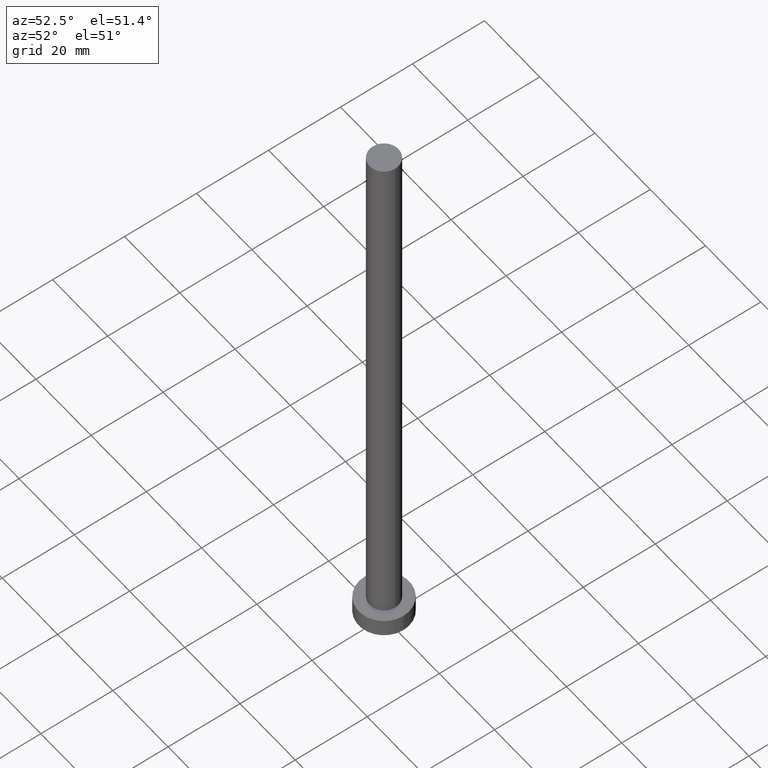
[diagram: clean part render]
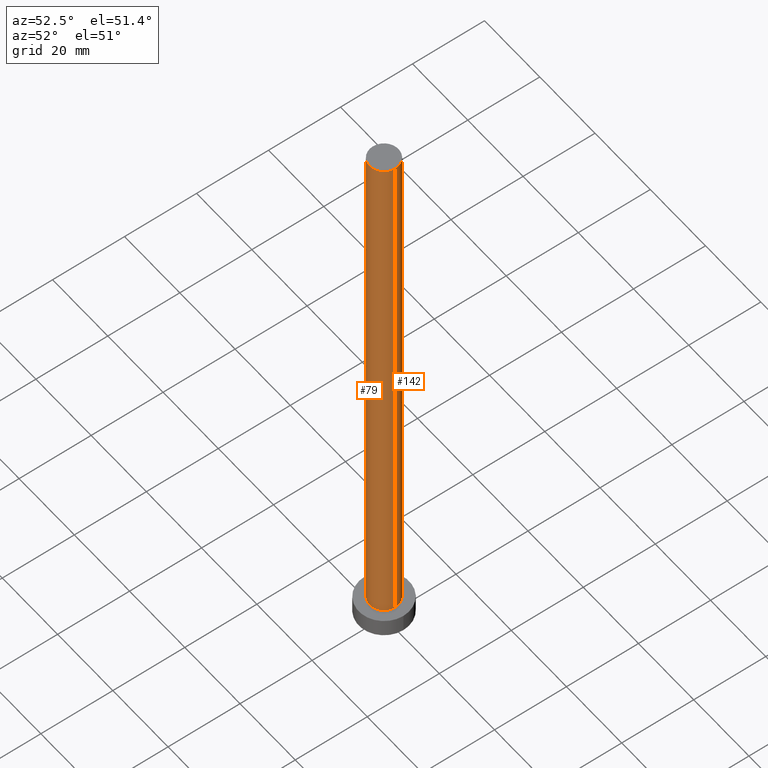
[diagram: same view with one multi-face feature highlighted, each face labeled with its STEP entity id]
A machine part, auxiliary view. The highlighted faces form ONE feature: a constant-radius fillet chain: 2 tangent blend faces with common blend radius 4 mm. The faces share edges in the B-rep.
Their STEP definitions:
[1] entity #79 (Cylinder):
#1 = ORIENTED_EDGE ( 'NONE', *, *, #160, .F. ) ;
#6 = VECTOR ( 'NONE', #244, 1000.000000000000000 ) ;
#9 = LINE ( 'NONE', #162, #6 ) ;
#18 = CIRCLE ( 'NONE', #216, 4.000000000000000000 ) ;
#21 = ORIENTED_EDGE ( 'NONE', *, *, #99, .T. ) ;
#43 = FACE_OUTER_BOUND ( 'NONE', #117, .T. ) ;
#44 = VERTEX_POINT ( 'NONE', #238 ) ;
#47 = DIRECTION ( 'NONE',  ( 1.000000000000000000, 0.000000000000000000, 0.000000000000000000 ) ) ;
#51 = CARTESIAN_POINT ( 'NONE',  ( 0.000000000000000000, 0.000000000000000000, 160.0000000000000000 ) ) ;
#58 = DIRECTION ( 'NONE',  ( -0.000000000000000000, -0.000000000000000000, -1.000000000000000000 ) ) ;
#65 = AXIS2_PLACEMENT_3D ( 'NONE', #148, #58, #201 ) ;
#79 = ADVANCED_FACE ( 'NONE', ( #43 ), #119, .T. ) ;
#87 = DIRECTION ( 'NONE',  ( 0.000000000000000000, 0.000000000000000000, 1.000000000000000000 ) ) ;
#97 = VERTEX_POINT ( 'NONE', #112 ) ;
#99 = EDGE_CURVE ( 'NONE', #44, #97, #18, .T. ) ;
#100 = AXIS2_PLACEMENT_3D ( 'NONE', #51, #87, #141 ) ;
#102 = CARTESIAN_POINT ( 'NONE',  ( 4.000000000000000000, 4.898587196589412829E-16, 160.0000000000000000 ) ) ;
#108 = CARTESIAN_POINT ( 'NONE',  ( 4.000000000000000000, 4.898587196589412829E-16, 160.0000000000000000 ) ) ;
#112 = CARTESIAN_POINT ( 'NONE',  ( 4.000000000000000000, 4.898587196589412829E-16, 5.000000000000000000 ) ) ;
#117 = EDGE_LOOP ( 'NONE', ( #1, #154, #220, #21 ) ) ;
#119 = CYLINDRICAL_SURFACE ( 'NONE', #65, 4.000000000000000000 ) ;
#137 = CARTESIAN_POINT ( 'NONE',  ( 0.000000000000000000, 0.000000000000000000, 5.000000000000000000 ) ) ;
#139 = EDGE_CURVE ( 'NONE', #178, #241, #199, .T. ) ;
#141 = DIRECTION ( 'NONE',  ( 1.000000000000000000, 0.000000000000000000, 0.000000000000000000 ) ) ;
#148 = CARTESIAN_POINT ( 'NONE',  ( 0.000000000000000000, 0.000000000000000000, 160.0000000000000000 ) ) ;
#154 = ORIENTED_EDGE ( 'NONE', *, *, #139, .F. ) ;
#160 = EDGE_CURVE ( 'NONE', #241, #97, #228, .T. ) ;
#162 = CARTESIAN_POINT ( 'NONE',  ( -4.000000000000000000, 0.000000000000000000, 160.0000000000000000 ) ) ;
#178 = VERTEX_POINT ( 'NONE', #226 ) ;
#192 = VECTOR ( 'NONE', #206, 1000.000000000000000 ) ;
#199 = CIRCLE ( 'NONE', #100, 4.000000000000000000 ) ;
#201 = DIRECTION ( 'NONE',  ( -1.000000000000000000, 0.000000000000000000, 0.000000000000000000 ) ) ;
#206 = DIRECTION ( 'NONE',  ( -0.000000000000000000, -0.000000000000000000, -1.000000000000000000 ) ) ;
#216 = AXIS2_PLACEMENT_3D ( 'NONE', #137, #224, #47 ) ;
#220 = ORIENTED_EDGE ( 'NONE', *, *, #227, .T. ) ;
#224 = DIRECTION ( 'NONE',  ( 0.000000000000000000, 0.000000000000000000, 1.000000000000000000 ) ) ;
#226 = CARTESIAN_POINT ( 'NONE',  ( -4.000000000000000000, 0.000000000000000000, 160.0000000000000000 ) ) ;
#227 = EDGE_CURVE ( 'NONE', #178, #44, #9, .T. ) ;
#228 = LINE ( 'NONE', #102, #192 ) ;
#238 = CARTESIAN_POINT ( 'NONE',  ( -4.000000000000000000, 0.000000000000000000, 5.000000000000000000 ) ) ;
#241 = VERTEX_POINT ( 'NONE', #108 ) ;
#244 = DIRECTION ( 'NONE',  ( -0.000000000000000000, -0.000000000000000000, -1.000000000000000000 ) ) ;
[2] entity #142 (Cylinder):
#6 = VECTOR ( 'NONE', #244, 1000.000000000000000 ) ;
#9 = LINE ( 'NONE', #162, #6 ) ;
#27 = DIRECTION ( 'NONE',  ( 1.000000000000000000, 0.000000000000000000, 0.000000000000000000 ) ) ;
#29 = FACE_OUTER_BOUND ( 'NONE', #195, .T. ) ;
#44 = VERTEX_POINT ( 'NONE', #238 ) ;
#50 = EDGE_CURVE ( 'NONE', #241, #178, #167, .T. ) ;
#52 = AXIS2_PLACEMENT_3D ( 'NONE', #69, #64, #27 ) ;
#64 = DIRECTION ( 'NONE',  ( 0.000000000000000000, 0.000000000000000000, 1.000000000000000000 ) ) ;
#69 = CARTESIAN_POINT ( 'NONE',  ( 0.000000000000000000, 0.000000000000000000, 5.000000000000000000 ) ) ;
#73 = AXIS2_PLACEMENT_3D ( 'NONE', #78, #135, #252 ) ;
#78 = CARTESIAN_POINT ( 'NONE',  ( 0.000000000000000000, 0.000000000000000000, 160.0000000000000000 ) ) ;
#80 = ORIENTED_EDGE ( 'NONE', *, *, #147, .T. ) ;
#97 = VERTEX_POINT ( 'NONE', #112 ) ;
#102 = CARTESIAN_POINT ( 'NONE',  ( 4.000000000000000000, 4.898587196589412829E-16, 160.0000000000000000 ) ) ;
#108 = CARTESIAN_POINT ( 'NONE',  ( 4.000000000000000000, 4.898587196589412829E-16, 160.0000000000000000 ) ) ;
#112 = CARTESIAN_POINT ( 'NONE',  ( 4.000000000000000000, 4.898587196589412829E-16, 5.000000000000000000 ) ) ;
#113 = ORIENTED_EDGE ( 'NONE', *, *, #227, .F. ) ;
#122 = CARTESIAN_POINT ( 'NONE',  ( 0.000000000000000000, 0.000000000000000000, 160.0000000000000000 ) ) ;
#125 = ORIENTED_EDGE ( 'NONE', *, *, #50, .F. ) ;
#135 = DIRECTION ( 'NONE',  ( 0.000000000000000000, 0.000000000000000000, 1.000000000000000000 ) ) ;
#142 = ADVANCED_FACE ( 'NONE', ( #29 ), #204, .T. ) ;
#147 = EDGE_CURVE ( 'NONE', #97, #44, #253, .T. ) ;
#160 = EDGE_CURVE ( 'NONE', #241, #97, #228, .T. ) ;
#162 = CARTESIAN_POINT ( 'NONE',  ( -4.000000000000000000, 0.000000000000000000, 160.0000000000000000 ) ) ;
#167 = CIRCLE ( 'NONE', #73, 4.000000000000000000 ) ;
#178 = VERTEX_POINT ( 'NONE', #226 ) ;
#192 = VECTOR ( 'NONE', #206, 1000.000000000000000 ) ;
#195 = EDGE_LOOP ( 'NONE', ( #125, #242, #80, #113 ) ) ;
#204 = CYLINDRICAL_SURFACE ( 'NONE', #248, 4.000000000000000000 ) ;
#206 = DIRECTION ( 'NONE',  ( -0.000000000000000000, -0.000000000000000000, -1.000000000000000000 ) ) ;
#226 = CARTESIAN_POINT ( 'NONE',  ( -4.000000000000000000, 0.000000000000000000, 160.0000000000000000 ) ) ;
#227 = EDGE_CURVE ( 'NONE', #178, #44, #9, .T. ) ;
#228 = LINE ( 'NONE', #102, #192 ) ;
#238 = CARTESIAN_POINT ( 'NONE',  ( -4.000000000000000000, 0.000000000000000000, 5.000000000000000000 ) ) ;
#241 = VERTEX_POINT ( 'NONE', #108 ) ;
#242 = ORIENTED_EDGE ( 'NONE', *, *, #160, .T. ) ;
#243 = DIRECTION ( 'NONE',  ( -0.000000000000000000, -0.000000000000000000, -1.000000000000000000 ) ) ;
#244 = DIRECTION ( 'NONE',  ( -0.000000000000000000, -0.000000000000000000, -1.000000000000000000 ) ) ;
#245 = DIRECTION ( 'NONE',  ( -1.000000000000000000, 0.000000000000000000, 0.000000000000000000 ) ) ;
#248 = AXIS2_PLACEMENT_3D ( 'NONE', #122, #243, #245 ) ;
#252 = DIRECTION ( 'NONE',  ( 1.000000000000000000, 0.000000000000000000, 0.000000000000000000 ) ) ;
#253 = CIRCLE ( 'NONE', #52, 4.000000000000000000 ) ;